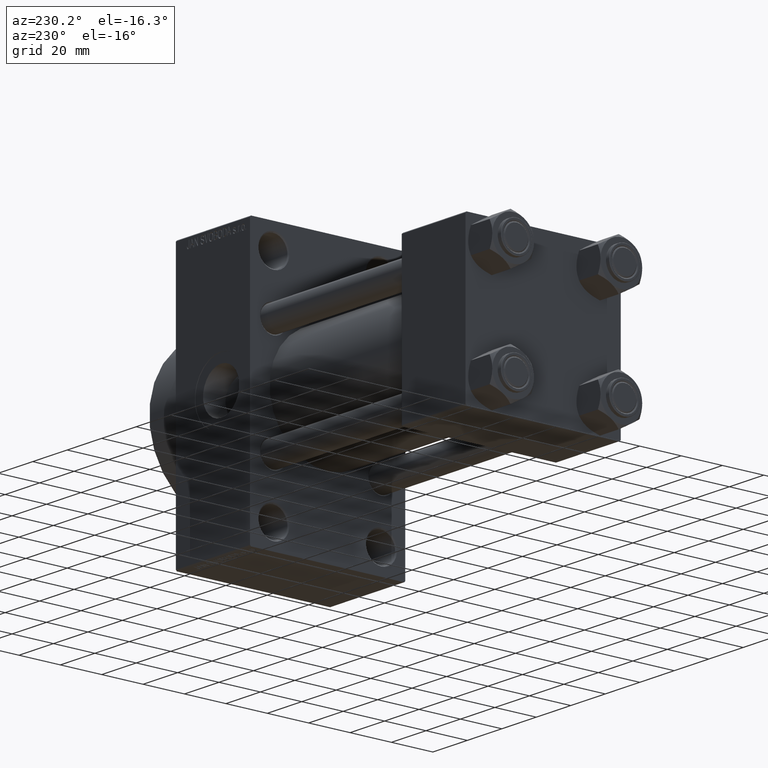
[diagram: clean part render]
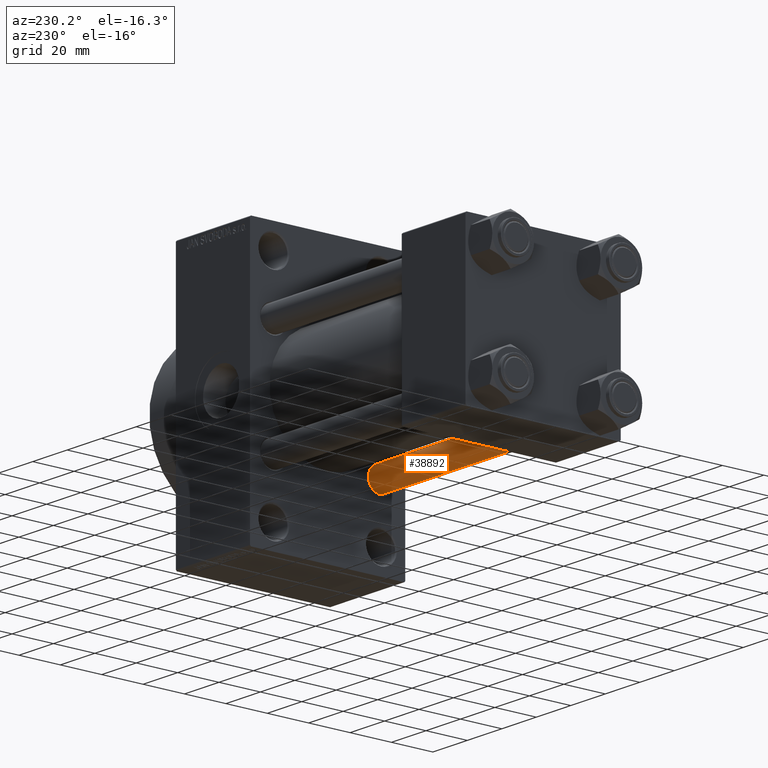
[diagram: same view with one face highlighted and labeled with its STEP entity id]
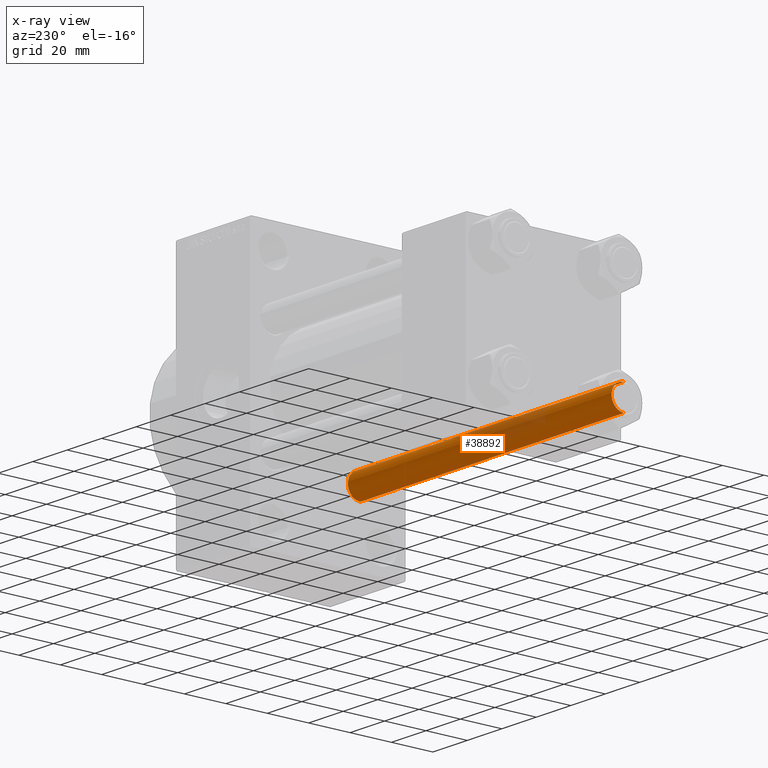
[diagram: x-ray of the same camera — body ghosted, the highlighted face saturated]
A machine part, auxiliary view. The second image highlights one B-rep face of the part: STEP entity #38892.
The next image is the same camera in x-ray: the body ghosted, the highlighted face saturated — about 16% of this face is hidden behind the body in this view.
In plain terms, the highlighted cylindrical surface (edge-blend (fillet) strip) has radius 6 mm, axis along (1, 0, 0).
Its self-contained STEP definition (entity closure, byte-faithful):
#1797 = VECTOR ( 'NONE', #29465, 1000.000000000000000 ) ;
#1910 = CARTESIAN_POINT ( 'NONE',  ( 6.000000000000000888, 7.347880794884120722E-16, 154.0000000000000000 ) ) ;
#2250 = AXIS2_PLACEMENT_3D ( 'NONE', #13599, #25628, #39906 ) ;
#2271 = CYLINDRICAL_SURFACE ( 'NONE', #2250, 6.000000000000000888 ) ;
#4042 = CIRCLE ( 'NONE', #15031, 6.000000000000000888 ) ;
#5722 = VERTEX_POINT ( 'NONE', #5990 ) ;
#5990 = CARTESIAN_POINT ( 'NONE',  ( -6.000000000000000888, 0.000000000000000000, 153.5000000000000000 ) ) ;
#6579 = EDGE_LOOP ( 'NONE', ( #31741, #36608, #9601, #25619 ) ) ;
#7369 = DIRECTION ( 'NONE',  ( 1.000000000000000000, 0.000000000000000000, 0.000000000000000000 ) ) ;
#7953 = VERTEX_POINT ( 'NONE', #21984 ) ;
#9601 = ORIENTED_EDGE ( 'NONE', *, *, #23215, .T. ) ;
#12584 = CARTESIAN_POINT ( 'NONE',  ( 6.000000000000000888, 7.347880794884120722E-16, 0.5000000000000281997 ) ) ;
#13599 = CARTESIAN_POINT ( 'NONE',  ( 0.000000000000000000, 0.000000000000000000, 154.0000000000000000 ) ) ;
#15031 = AXIS2_PLACEMENT_3D ( 'NONE', #17740, #32739, #31782 ) ;
#15781 = EDGE_CURVE ( 'NONE', #7953, #46410, #4042, .T. ) ;
#17257 = AXIS2_PLACEMENT_3D ( 'NONE', #26318, #37611, #7369 ) ;
#17740 = CARTESIAN_POINT ( 'NONE',  ( 0.000000000000000000, 0.000000000000000000, 0.5000000000000281997 ) ) ;
#18684 = EDGE_CURVE ( 'NONE', #35375, #46410, #36563, .T. ) ;
#20080 = CARTESIAN_POINT ( 'NONE',  ( 6.000000000000000888, 7.347880794884120722E-16, 153.5000000000000000 ) ) ;
#20477 = VECTOR ( 'NONE', #25018, 1000.000000000000000 ) ;
#21984 = CARTESIAN_POINT ( 'NONE',  ( -6.000000000000000888, 0.000000000000000000, 0.5000000000000281997 ) ) ;
#22309 = CARTESIAN_POINT ( 'NONE',  ( -6.000000000000000888, 0.000000000000000000, 154.0000000000000000 ) ) ;
#23215 = EDGE_CURVE ( 'NONE', #5722, #7953, #40531, .T. ) ;
#24669 = FACE_OUTER_BOUND ( 'NONE', #6579, .T. ) ;
#25018 = DIRECTION ( 'NONE',  ( -0.000000000000000000, -0.000000000000000000, -1.000000000000000000 ) ) ;
#25619 = ORIENTED_EDGE ( 'NONE', *, *, #15781, .T. ) ;
#25628 = DIRECTION ( 'NONE',  ( -0.000000000000000000, -0.000000000000000000, -1.000000000000000000 ) ) ;
#26318 = CARTESIAN_POINT ( 'NONE',  ( 0.000000000000000000, 0.000000000000000000, 153.5000000000000000 ) ) ;
#29465 = DIRECTION ( 'NONE',  ( -0.000000000000000000, -0.000000000000000000, -1.000000000000000000 ) ) ;
#31741 = ORIENTED_EDGE ( 'NONE', *, *, #18684, .F. ) ;
#31782 = DIRECTION ( 'NONE',  ( 1.000000000000000000, 0.000000000000000000, 0.000000000000000000 ) ) ;
#32739 = DIRECTION ( 'NONE',  ( -0.000000000000000000, -0.000000000000000000, 1.000000000000000000 ) ) ;
#35375 = VERTEX_POINT ( 'NONE', #20080 ) ;
#36563 = LINE ( 'NONE', #1910, #20477 ) ;
#36608 = ORIENTED_EDGE ( 'NONE', *, *, #42532, .T. ) ;
#37611 = DIRECTION ( 'NONE',  ( 0.000000000000000000, 0.000000000000000000, -1.000000000000000000 ) ) ;
#38479 = CIRCLE ( 'NONE', #17257, 6.000000000000000888 ) ;
#38892 = ADVANCED_FACE ( 'NONE', ( #24669 ), #2271, .T. ) ;
#39906 = DIRECTION ( 'NONE',  ( -1.000000000000000000, 0.000000000000000000, 0.000000000000000000 ) ) ;
#40531 = LINE ( 'NONE', #22309, #1797 ) ;
#42532 = EDGE_CURVE ( 'NONE', #35375, #5722, #38479, .T. ) ;
#46410 = VERTEX_POINT ( 'NONE', #12584 ) ;